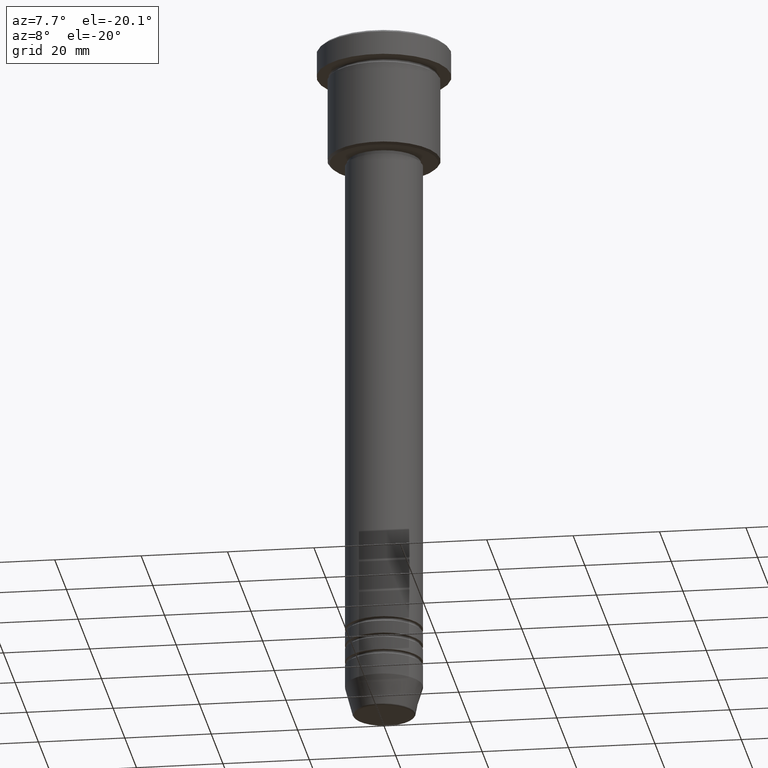
[diagram: clean part render]
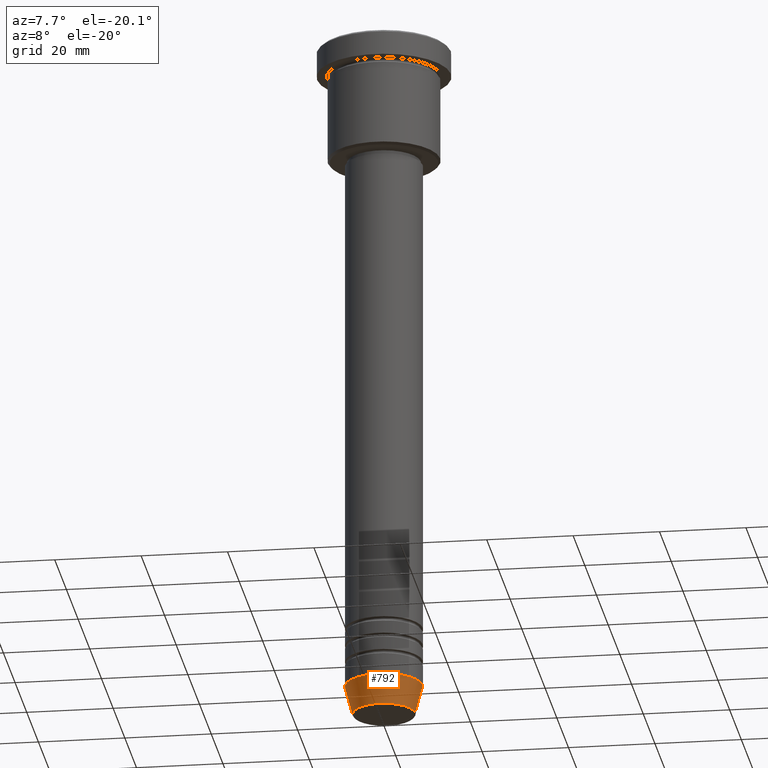
[diagram: same view with one face highlighted and labeled with its STEP entity id]
A machine part, auxiliary view. The second image highlights one B-rep face of the part: STEP entity #792.
In plain terms, the highlighted conical surface has half-angle 15 deg.
Its self-contained STEP definition (entity closure, byte-faithful):
#39 = EDGE_CURVE ( 'NONE', #314, #391, #533, .T. ) ;
#49 = DIRECTION ( 'NONE',  ( 0.2588190451025213501, 0.000000000000000000, 0.9659258262890680902 ) ) ;
#79 = CARTESIAN_POINT ( 'NONE',  ( -9.000000000000000000, 1.102182119232617714E-15, -155.0000000000000284 ) ) ;
#123 = CONICAL_SURFACE ( 'NONE', #416, 9.000000000000000000, 0.2617993877991500740 ) ;
#215 = ORIENTED_EDGE ( 'NONE', *, *, #39, .F. ) ;
#233 = DIRECTION ( 'NONE',  ( 1.000000000000000000, 0.000000000000000000, 0.000000000000000000 ) ) ;
#248 = ORIENTED_EDGE ( 'NONE', *, *, #1073, .F. ) ;
#299 = CARTESIAN_POINT ( 'NONE',  ( 9.000000000000000000, 0.000000000000000000, -155.0000000000000284 ) ) ;
#302 = EDGE_LOOP ( 'NONE', ( #215, #577, #996, #248 ) ) ;
#314 = VERTEX_POINT ( 'NONE', #1008 ) ;
#331 = LINE ( 'NONE', #434, #960 ) ;
#366 = DIRECTION ( 'NONE',  ( -0.000000000000000000, -0.000000000000000000, 1.000000000000000000 ) ) ;
#375 = CIRCLE ( 'NONE', #1165, 7.223655072137188604 ) ;
#391 = VERTEX_POINT ( 'NONE', #982 ) ;
#416 = AXIS2_PLACEMENT_3D ( 'NONE', #431, #1066, #233 ) ;
#420 = FACE_OUTER_BOUND ( 'NONE', #302, .T. ) ;
#431 = CARTESIAN_POINT ( 'NONE',  ( 0.000000000000000000, 0.000000000000000000, -155.0000000000000284 ) ) ;
#434 = CARTESIAN_POINT ( 'NONE',  ( 9.000000000000000000, 0.000000000000000000, -155.0000000000000284 ) ) ;
#448 = DIRECTION ( 'NONE',  ( -0.2588190451025213501, 3.169619151431772337E-17, 0.9659258262890680902 ) ) ;
#487 = EDGE_CURVE ( 'NONE', #887, #741, #331, .T. ) ;
#533 = LINE ( 'NONE', #79, #738 ) ;
#553 = EDGE_CURVE ( 'NONE', #314, #887, #375, .T. ) ;
#577 = ORIENTED_EDGE ( 'NONE', *, *, #553, .T. ) ;
#738 = VECTOR ( 'NONE', #448, 1000.000000000000000 ) ;
#741 = VERTEX_POINT ( 'NONE', #299 ) ;
#792 = ADVANCED_FACE ( 'NONE', ( #420 ), #123, .T. ) ;
#887 = VERTEX_POINT ( 'NONE', #1056 ) ;
#922 = DIRECTION ( 'NONE',  ( -0.000000000000000000, -0.000000000000000000, 1.000000000000000000 ) ) ;
#960 = VECTOR ( 'NONE', #49, 1000.000000000000000 ) ;
#982 = CARTESIAN_POINT ( 'NONE',  ( -9.000000000000000000, 1.102182119232617714E-15, -155.0000000000000284 ) ) ;
#996 = ORIENTED_EDGE ( 'NONE', *, *, #487, .T. ) ;
#1008 = CARTESIAN_POINT ( 'NONE',  ( -7.223655072137189492, 9.934123627281765110E-16, -161.6294095225512990 ) ) ;
#1018 = DIRECTION ( 'NONE',  ( 1.000000000000000000, 0.000000000000000000, 0.000000000000000000 ) ) ;
#1021 = DIRECTION ( 'NONE',  ( 1.000000000000000000, 0.000000000000000000, 0.000000000000000000 ) ) ;
#1049 = CIRCLE ( 'NONE', #1121, 9.000000000000000000 ) ;
#1056 = CARTESIAN_POINT ( 'NONE',  ( 7.223655072137188604, 0.000000000000000000, -161.6294095225512990 ) ) ;
#1066 = DIRECTION ( 'NONE',  ( -0.000000000000000000, -0.000000000000000000, 1.000000000000000000 ) ) ;
#1073 = EDGE_CURVE ( 'NONE', #391, #741, #1049, .T. ) ;
#1110 = CARTESIAN_POINT ( 'NONE',  ( 0.000000000000000000, 0.000000000000000000, -161.6294095225512990 ) ) ;
#1121 = AXIS2_PLACEMENT_3D ( 'NONE', #1181, #366, #1018 ) ;
#1165 = AXIS2_PLACEMENT_3D ( 'NONE', #1110, #922, #1021 ) ;
#1181 = CARTESIAN_POINT ( 'NONE',  ( 0.000000000000000000, 0.000000000000000000, -155.0000000000000284 ) ) ;